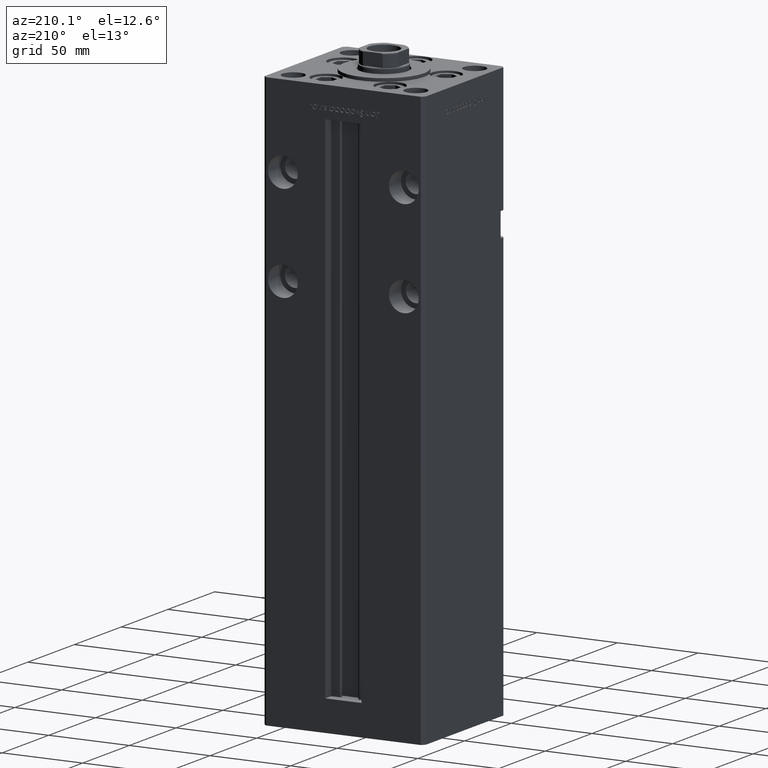
[diagram: clean part render]
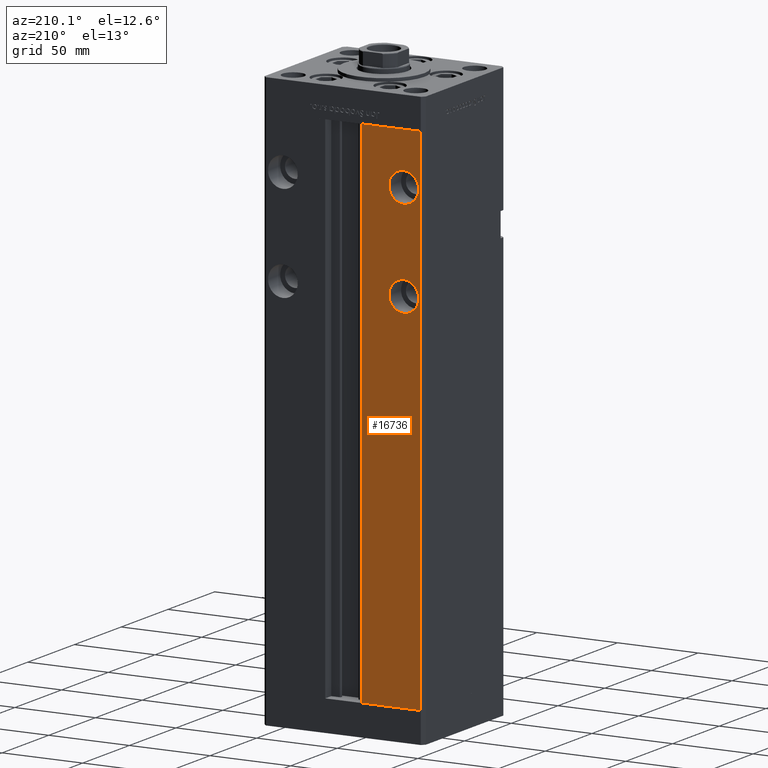
[diagram: same view with one face highlighted and labeled with its STEP entity id]
A machine part, auxiliary view. The second image highlights one B-rep face of the part: STEP entity #16736.
In plain terms, the highlighted planar face has unit normal (0, -1, 0).
Its self-contained STEP definition (entity closure, byte-faithful):
#276 = VERTEX_POINT ( 'NONE', #37684 ) ;
#391 = EDGE_CURVE ( 'NONE', #37721, #49461, #19816, .T. ) ;
#1374 = CARTESIAN_POINT ( 'NONE',  ( -37.50000000000000000, 43.50000000000000000, 235.7500000000000284 ) ) ;
#2646 = EDGE_CURVE ( 'NONE', #33895, #49094, #22521, .T. ) ;
#2648 = EDGE_CURVE ( 'NONE', #33597, #3108, #7040, .T. ) ;
#2782 = CIRCLE ( 'NONE', #28496, 9.249999999999980460 ) ;
#3015 = LINE ( 'NONE', #42783, #7213 ) ;
#3038 = EDGE_CURVE ( 'NONE', #3108, #33597, #2782, .T. ) ;
#3048 = VECTOR ( 'NONE', #20707, 1000.000000000000000 ) ;
#3108 = VERTEX_POINT ( 'NONE', #15341 ) ;
#4082 = LINE ( 'NONE', #17202, #20862 ) ;
#4122 = AXIS2_PLACEMENT_3D ( 'NONE', #16130, #44912, #32540 ) ;
#5022 = CARTESIAN_POINT ( 'NONE',  ( -11.24999999999999645, 43.50000000000000000, 318.5000000000000000 ) ) ;
#5047 = EDGE_LOOP ( 'NONE', ( #26513, #28581 ) ) ;
#5514 = CARTESIAN_POINT ( 'NONE',  ( -37.50000000000000000, 43.50000000000000000, 277.2500000000000000 ) ) ;
#7040 = CIRCLE ( 'NONE', #11272, 9.249999999999980460 ) ;
#7213 = VECTOR ( 'NONE', #46802, 1000.000000000000000 ) ;
#7569 = FACE_BOUND ( 'NONE', #5047, .T. ) ;
#7573 = ORIENTED_EDGE ( 'NONE', *, *, #26338, .T. ) ;
#8201 = VERTEX_POINT ( 'NONE', #44172 ) ;
#9724 = CARTESIAN_POINT ( 'NONE',  ( -11.24999999999999645, 43.50000000000000000, 0.000000000000000000 ) ) ;
#10170 = DIRECTION ( 'NONE',  ( -0.000000000000000000, -0.000000000000000000, 1.000000000000000000 ) ) ;
#10976 = EDGE_LOOP ( 'NONE', ( #28194, #35340 ) ) ;
#11272 = AXIS2_PLACEMENT_3D ( 'NONE', #27117, #42975, #47818 ) ;
#12142 = VECTOR ( 'NONE', #10170, 1000.000000000000000 ) ;
#12199 = CARTESIAN_POINT ( 'NONE',  ( -37.50000000000000000, 43.50000000000000000, 226.5000000000000000 ) ) ;
#12383 = DIRECTION ( 'NONE',  ( 1.000000000000000000, 0.000000000000000000, 0.000000000000000000 ) ) ;
#12831 = CARTESIAN_POINT ( 'NONE',  ( -37.50000000000000000, 43.50000000000000000, 217.2500000000000000 ) ) ;
#13050 = EDGE_CURVE ( 'NONE', #8201, #276, #52474, .T. ) ;
#13691 = ORIENTED_EDGE ( 'NONE', *, *, #13050, .F. ) ;
#14739 = CARTESIAN_POINT ( 'NONE',  ( -11.24999999999999645, 43.50000000000000000, 0.000000000000000000 ) ) ;
#15094 = FACE_BOUND ( 'NONE', #10976, .T. ) ;
#15341 = CARTESIAN_POINT ( 'NONE',  ( -37.50000000000000000, 43.50000000000000000, 295.7499999999999432 ) ) ;
#16130 = CARTESIAN_POINT ( 'NONE',  ( -11.24999999999999645, 43.50000000000000000, 318.5000000000000000 ) ) ;
#16736 = ADVANCED_FACE ( 'NONE', ( #15094, #7569, #52980 ), #27989, .F. ) ;
#17202 = CARTESIAN_POINT ( 'NONE',  ( -11.24999999999999645, 43.50000000000000000, 318.5000000000000000 ) ) ;
#19816 = CIRCLE ( 'NONE', #37010, 9.250000000000008882 ) ;
#20469 = ORIENTED_EDGE ( 'NONE', *, *, #2646, .F. ) ;
#20707 = DIRECTION ( 'NONE',  ( -0.000000000000000000, -0.000000000000000000, -1.000000000000000000 ) ) ;
#20862 = VECTOR ( 'NONE', #12383, 1000.000000000000000 ) ;
#22344 = EDGE_LOOP ( 'NONE', ( #7573, #20469, #36858, #13691 ) ) ;
#22521 = LINE ( 'NONE', #14739, #12142 ) ;
#26338 = EDGE_CURVE ( 'NONE', #8201, #49094, #4082, .T. ) ;
#26513 = ORIENTED_EDGE ( 'NONE', *, *, #36491, .F. ) ;
#27117 = CARTESIAN_POINT ( 'NONE',  ( -37.50000000000000000, 43.50000000000000000, 286.5000000000000000 ) ) ;
#27644 = EDGE_CURVE ( 'NONE', #33895, #276, #3015, .T. ) ;
#27989 = PLANE ( 'NONE',  #4122 ) ;
#28194 = ORIENTED_EDGE ( 'NONE', *, *, #3038, .F. ) ;
#28385 = DIRECTION ( 'NONE',  ( 0.000000000000000000, 1.000000000000000000, 0.000000000000000000 ) ) ;
#28496 = AXIS2_PLACEMENT_3D ( 'NONE', #33900, #29619, #50314 ) ;
#28581 = ORIENTED_EDGE ( 'NONE', *, *, #391, .F. ) ;
#29619 = DIRECTION ( 'NONE',  ( 0.000000000000000000, 1.000000000000000000, -0.000000000000000000 ) ) ;
#32540 = DIRECTION ( 'NONE',  ( 0.000000000000000000, -0.000000000000000000, -1.000000000000000000 ) ) ;
#33213 = CARTESIAN_POINT ( 'NONE',  ( -37.50000000000000000, 43.50000000000000000, 226.5000000000000000 ) ) ;
#33597 = VERTEX_POINT ( 'NONE', #5514 ) ;
#33895 = VERTEX_POINT ( 'NONE', #9724 ) ;
#33900 = CARTESIAN_POINT ( 'NONE',  ( -37.50000000000000000, 43.50000000000000000, 286.5000000000000000 ) ) ;
#35340 = ORIENTED_EDGE ( 'NONE', *, *, #2648, .F. ) ;
#36491 = EDGE_CURVE ( 'NONE', #49461, #37721, #44262, .T. ) ;
#36858 = ORIENTED_EDGE ( 'NONE', *, *, #27644, .T. ) ;
#37010 = AXIS2_PLACEMENT_3D ( 'NONE', #12199, #45533, #49573 ) ;
#37684 = CARTESIAN_POINT ( 'NONE',  ( -48.00000000000000711, 43.50000000000000000, 0.000000000000000000 ) ) ;
#37721 = VERTEX_POINT ( 'NONE', #12831 ) ;
#40848 = AXIS2_PLACEMENT_3D ( 'NONE', #33213, #28385, #41292 ) ;
#41292 = DIRECTION ( 'NONE',  ( 0.000000000000000000, 0.000000000000000000, 1.000000000000000000 ) ) ;
#42783 = CARTESIAN_POINT ( 'NONE',  ( -11.24999999999999645, 43.50000000000000000, 0.000000000000000000 ) ) ;
#42975 = DIRECTION ( 'NONE',  ( 0.000000000000000000, 1.000000000000000000, -0.000000000000000000 ) ) ;
#44172 = CARTESIAN_POINT ( 'NONE',  ( -48.00000000000000711, 43.50000000000000000, 318.5000000000000000 ) ) ;
#44262 = CIRCLE ( 'NONE', #40848, 9.250000000000008882 ) ;
#44912 = DIRECTION ( 'NONE',  ( 0.000000000000000000, -1.000000000000000000, 0.000000000000000000 ) ) ;
#45533 = DIRECTION ( 'NONE',  ( 0.000000000000000000, 1.000000000000000000, 0.000000000000000000 ) ) ;
#46802 = DIRECTION ( 'NONE',  ( -1.000000000000000000, 0.000000000000000000, 0.000000000000000000 ) ) ;
#47818 = DIRECTION ( 'NONE',  ( 0.000000000000000000, 0.000000000000000000, -1.000000000000000000 ) ) ;
#49094 = VERTEX_POINT ( 'NONE', #5022 ) ;
#49225 = CARTESIAN_POINT ( 'NONE',  ( -48.00000000000000711, 43.50000000000000000, 318.5000000000000000 ) ) ;
#49461 = VERTEX_POINT ( 'NONE', #1374 ) ;
#49573 = DIRECTION ( 'NONE',  ( 0.000000000000000000, 0.000000000000000000, 1.000000000000000000 ) ) ;
#50314 = DIRECTION ( 'NONE',  ( 0.000000000000000000, 0.000000000000000000, -1.000000000000000000 ) ) ;
#52474 = LINE ( 'NONE', #49225, #3048 ) ;
#52980 = FACE_OUTER_BOUND ( 'NONE', #22344, .T. ) ;